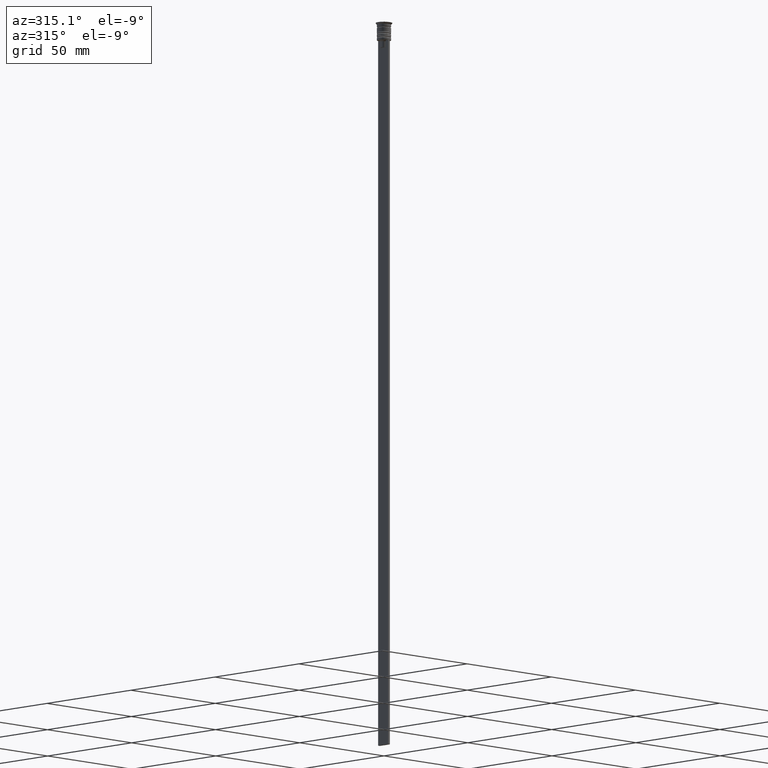
[diagram: clean part render]
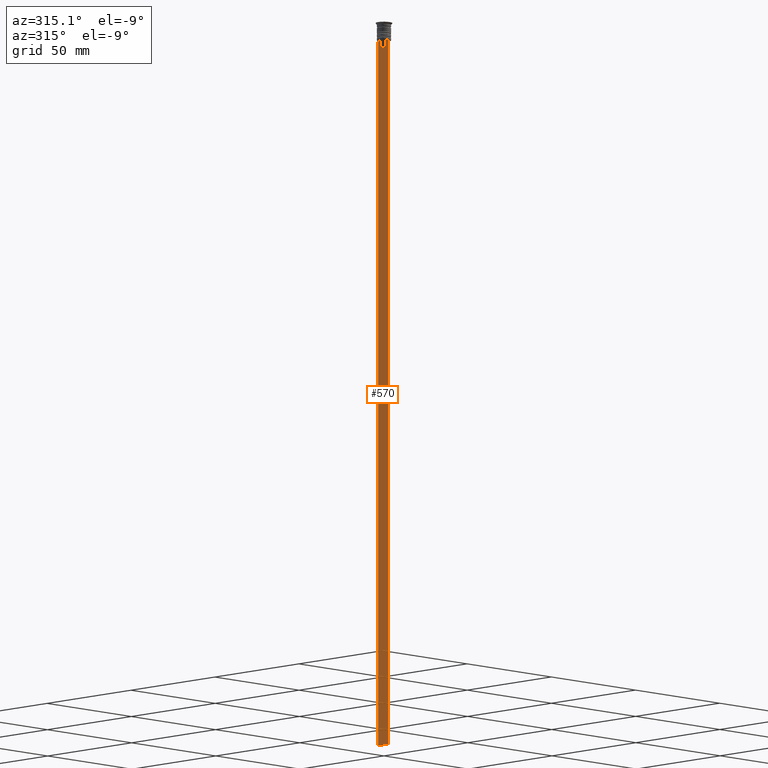
[diagram: same view with one face highlighted and labeled with its STEP entity id]
A machine part, auxiliary view. The second image highlights one B-rep face of the part: STEP entity #570.
In plain terms, the highlighted planar face has unit normal (-1, 0, 0).
Its self-contained STEP definition (entity closure, byte-faithful):
#9 = DIRECTION ( 'NONE',  ( -0.000000000000000000, -0.000000000000000000, 1.000000000000000000 ) ) ;
#212 = VERTEX_POINT ( 'NONE', #1997 ) ;
#223 = EDGE_CURVE ( 'NONE', #962, #783, #2326, .T. ) ;
#238 = EDGE_CURVE ( 'NONE', #962, #1976, #377, .T. ) ;
#324 = CARTESIAN_POINT ( 'NONE',  ( -0.5000000000000001110, -3.000000000000000000, -1.417237469701779329 ) ) ;
#350 = CARTESIAN_POINT ( 'NONE',  ( -0.5000000000000001110, -3.000000000000000000, -7.500000000000000000 ) ) ;
#372 = EDGE_CURVE ( 'NONE', #2164, #1990, #1689, .T. ) ;
#377 = LINE ( 'NONE', #1811, #767 ) ;
#404 = VECTOR ( 'NONE', #9, 1000.000000000000000 ) ;
#425 = LINE ( 'NONE', #948, #959 ) ;
#431 = VERTEX_POINT ( 'NONE', #2274 ) ;
#437 = VECTOR ( 'NONE', #541, 1000.000000000000000 ) ;
#466 = CARTESIAN_POINT ( 'NONE',  ( -0.5000000000000001110, 3.000000000000000000, -307.5000000000000000 ) ) ;
#494 = FACE_OUTER_BOUND ( 'NONE', #603, .T. ) ;
#518 = VERTEX_POINT ( 'NONE', #1201 ) ;
#523 = ORIENTED_EDGE ( 'NONE', *, *, #764, .F. ) ;
#541 = DIRECTION ( 'NONE',  ( 0.000000000000000000, 1.000000000000000000, 0.000000000000000000 ) ) ;
#545 = EDGE_CURVE ( 'NONE', #431, #1548, #634, .T. ) ;
#570 = ADVANCED_FACE ( 'NONE', ( #494 ), #2105, .T. ) ;
#572 = CARTESIAN_POINT ( 'NONE',  ( -0.5000000000000001110, -1.833030277982335532, -7.500000000000000000 ) ) ;
#588 = CARTESIAN_POINT ( 'NONE',  ( -0.5000000000000001110, -3.000000000000000000, -7.500000000000000000 ) ) ;
#601 = CARTESIAN_POINT ( 'NONE',  ( -0.5000000000000001110, 2.856571371417139904, -7.500000000000000000 ) ) ;
#603 = EDGE_LOOP ( 'NONE', ( #857, #1840, #777, #1787, #1499, #760, #1855, #973, #2292, #1560, #1703, #523 ) ) ;
#634 = B_SPLINE_CURVE_WITH_KNOTS ( 'NONE', 3,
 ( #1553, #1027, #849, #1888 ),
 .UNSPECIFIED., .F., .F.,
 ( 4, 4 ),
 ( 0.003278537493109840491, 0.004003794023484932504 ),
 .UNSPECIFIED. ) ;
#660 = VECTOR ( 'NONE', #782, 1000.000000000000000 ) ;
#699 = DIRECTION ( 'NONE',  ( 0.000000000000000000, 0.000000000000000000, -1.000000000000000000 ) ) ;
#739 = VECTOR ( 'NONE', #815, 1000.000000000000000 ) ;
#760 = ORIENTED_EDGE ( 'NONE', *, *, #1901, .F. ) ;
#764 = EDGE_CURVE ( 'NONE', #1548, #931, #1520, .T. ) ;
#767 = VECTOR ( 'NONE', #699, 1000.000000000000000 ) ;
#777 = ORIENTED_EDGE ( 'NONE', *, *, #223, .F. ) ;
#780 = CARTESIAN_POINT ( 'NONE',  ( -0.5000000000000001110, -3.000000000000000000, -7.500000000000000000 ) ) ;
#782 = DIRECTION ( 'NONE',  ( 0.000000000000000000, 0.000000000000000000, -1.000000000000000000 ) ) ;
#783 = VERTEX_POINT ( 'NONE', #601 ) ;
#797 = EDGE_CURVE ( 'NONE', #931, #518, #425, .T. ) ;
#815 = DIRECTION ( 'NONE',  ( 0.000000000000000000, -1.000000000000000000, 0.000000000000000000 ) ) ;
#849 = CARTESIAN_POINT ( 'NONE',  ( -0.5000000000000001110, 1.484355510416485391, -7.834966642958598015 ) ) ;
#857 = ORIENTED_EDGE ( 'NONE', *, *, #545, .F. ) ;
#863 = CARTESIAN_POINT ( 'NONE',  ( -0.5000000000000001110, -3.000000000000000000, -307.5000000000000000 ) ) ;
#865 = CARTESIAN_POINT ( 'NONE',  ( -0.5000000000000001110, -3.000000000000000000, -7.500000000000000000 ) ) ;
#890 = LINE ( 'NONE', #863, #437 ) ;
#902 = EDGE_CURVE ( 'NONE', #1118, #2164, #2308, .T. ) ;
#931 = VERTEX_POINT ( 'NONE', #1712 ) ;
#948 = CARTESIAN_POINT ( 'NONE',  ( -0.5000000000000001110, 1.399999999999997691, -10.49999999999999822 ) ) ;
#959 = VECTOR ( 'NONE', #1155, 1000.000000000000000 ) ;
#962 = VERTEX_POINT ( 'NONE', #2151 ) ;
#973 = ORIENTED_EDGE ( 'NONE', *, *, #372, .F. ) ;
#1023 = EDGE_CURVE ( 'NONE', #1990, #1663, #1124, .T. ) ;
#1027 = CARTESIAN_POINT ( 'NONE',  ( -0.5000000000000001110, 1.659046061654642523, -7.667851756010361619 ) ) ;
#1054 = CARTESIAN_POINT ( 'NONE',  ( -0.5000000000000001110, -1.484307477388859153, -7.835011508197190722 ) ) ;
#1057 = DIRECTION ( 'NONE',  ( 0.000000000000000000, -1.000000000000000000, 0.000000000000000000 ) ) ;
#1067 = DIRECTION ( 'NONE',  ( 0.000000000000000000, 0.000000000000000000, 1.000000000000000000 ) ) ;
#1087 = LINE ( 'NONE', #2161, #404 ) ;
#1118 = VERTEX_POINT ( 'NONE', #1295 ) ;
#1124 = LINE ( 'NONE', #588, #1184 ) ;
#1155 = DIRECTION ( 'NONE',  ( 0.000000000000000000, -1.000000000000000000, 0.000000000000000000 ) ) ;
#1175 = VECTOR ( 'NONE', #1057, 1000.000000000000000 ) ;
#1184 = VECTOR ( 'NONE', #2003, 1000.000000000000000 ) ;
#1188 = VECTOR ( 'NONE', #2005, 1000.000000000000000 ) ;
#1201 = CARTESIAN_POINT ( 'NONE',  ( -0.5000000000000001110, -1.307669683062199217, -10.49999999999999822 ) ) ;
#1295 = CARTESIAN_POINT ( 'NONE',  ( -0.5000000000000001110, -1.307669683062199217, -8.000000000000000000 ) ) ;
#1333 = AXIS2_PLACEMENT_3D ( 'NONE', #324, #1394, #1067 ) ;
#1371 = CARTESIAN_POINT ( 'NONE',  ( -0.5000000000000001110, 1.307669683062199217, -8.000000000000000000 ) ) ;
#1387 = LINE ( 'NONE', #865, #739 ) ;
#1394 = DIRECTION ( 'NONE',  ( -1.000000000000000000, 0.000000000000000000, 0.000000000000000000 ) ) ;
#1453 = EDGE_CURVE ( 'NONE', #518, #1118, #1087, .T. ) ;
#1479 = CARTESIAN_POINT ( 'NONE',  ( -0.5000000000000001110, -3.000000000000000000, -1.417237469701779329 ) ) ;
#1492 = CARTESIAN_POINT ( 'NONE',  ( -0.5000000000000001110, 1.307669683062199217, 0.000000000000000000 ) ) ;
#1499 = ORIENTED_EDGE ( 'NONE', *, *, #1720, .F. ) ;
#1520 = LINE ( 'NONE', #1492, #660 ) ;
#1548 = VERTEX_POINT ( 'NONE', #1371 ) ;
#1553 = CARTESIAN_POINT ( 'NONE',  ( -0.5000000000000001110, 1.833030277982335532, -7.500000000000000000 ) ) ;
#1560 = ORIENTED_EDGE ( 'NONE', *, *, #1453, .F. ) ;
#1589 = CARTESIAN_POINT ( 'NONE',  ( -0.5000000000000001110, -2.856571371417139904, -7.500000000000000000 ) ) ;
#1605 = CARTESIAN_POINT ( 'NONE',  ( -0.5000000000000001110, -1.833030277982335532, -7.500000000000000000 ) ) ;
#1614 = EDGE_CURVE ( 'NONE', #783, #431, #1387, .T. ) ;
#1658 = DIRECTION ( 'NONE',  ( 0.000000000000000000, -1.000000000000000000, 0.000000000000000000 ) ) ;
#1663 = VERTEX_POINT ( 'NONE', #2325 ) ;
#1676 = VECTOR ( 'NONE', #1658, 1000.000000000000000 ) ;
#1689 = LINE ( 'NONE', #780, #1676 ) ;
#1703 = ORIENTED_EDGE ( 'NONE', *, *, #797, .F. ) ;
#1712 = CARTESIAN_POINT ( 'NONE',  ( -0.5000000000000001110, 1.307669683062199217, -10.49999999999999822 ) ) ;
#1720 = EDGE_CURVE ( 'NONE', #212, #1976, #890, .T. ) ;
#1787 = ORIENTED_EDGE ( 'NONE', *, *, #238, .T. ) ;
#1796 = CARTESIAN_POINT ( 'NONE',  ( -0.5000000000000001110, -1.307669683062199217, -8.000000000000000000 ) ) ;
#1811 = CARTESIAN_POINT ( 'NONE',  ( -0.5000000000000001110, 3.000000000000000000, -1.417237469701779329 ) ) ;
#1840 = ORIENTED_EDGE ( 'NONE', *, *, #1614, .F. ) ;
#1855 = ORIENTED_EDGE ( 'NONE', *, *, #1023, .F. ) ;
#1888 = CARTESIAN_POINT ( 'NONE',  ( -0.5000000000000001110, 1.307669683062199217, -8.000000000000000000 ) ) ;
#1901 = EDGE_CURVE ( 'NONE', #1663, #212, #2180, .T. ) ;
#1976 = VERTEX_POINT ( 'NONE', #466 ) ;
#1990 = VERTEX_POINT ( 'NONE', #1589 ) ;
#1997 = CARTESIAN_POINT ( 'NONE',  ( -0.5000000000000001110, -3.000000000000000000, -307.5000000000000000 ) ) ;
#2003 = DIRECTION ( 'NONE',  ( 0.000000000000000000, -1.000000000000000000, 0.000000000000000000 ) ) ;
#2005 = DIRECTION ( 'NONE',  ( 0.000000000000000000, 0.000000000000000000, -1.000000000000000000 ) ) ;
#2070 = CARTESIAN_POINT ( 'NONE',  ( -0.5000000000000001110, -1.659011726860414093, -7.667884880598472286 ) ) ;
#2105 = PLANE ( 'NONE',  #1333 ) ;
#2151 = CARTESIAN_POINT ( 'NONE',  ( -0.5000000000000001110, 3.000000000000000000, -7.500000000000000000 ) ) ;
#2161 = CARTESIAN_POINT ( 'NONE',  ( -0.5000000000000001110, -1.307669683062199217, 0.000000000000000000 ) ) ;
#2164 = VERTEX_POINT ( 'NONE', #572 ) ;
#2180 = LINE ( 'NONE', #1479, #1188 ) ;
#2274 = CARTESIAN_POINT ( 'NONE',  ( -0.5000000000000001110, 1.833030277982335532, -7.500000000000000000 ) ) ;
#2292 = ORIENTED_EDGE ( 'NONE', *, *, #902, .F. ) ;
#2308 = B_SPLINE_CURVE_WITH_KNOTS ( 'NONE', 3,
 ( #1796, #1054, #2070, #1605 ),
 .UNSPECIFIED., .F., .F.,
 ( 4, 4 ),
 ( 0.007225659348748070081, 0.007950554640278040958 ),
 .UNSPECIFIED. ) ;
#2325 = CARTESIAN_POINT ( 'NONE',  ( -0.5000000000000001110, -3.000000000000000000, -7.500000000000000000 ) ) ;
#2326 = LINE ( 'NONE', #350, #1175 ) ;